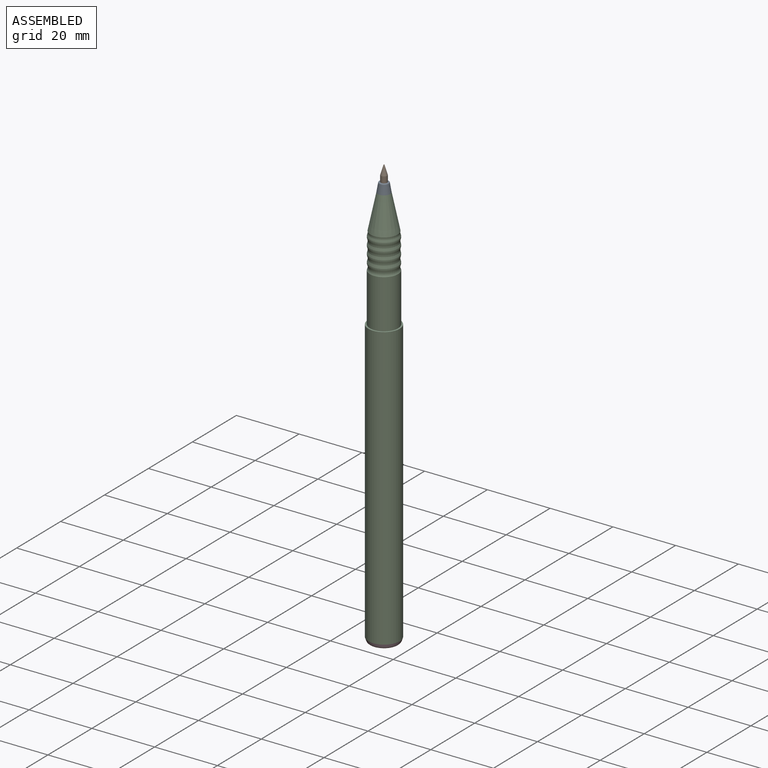
[diagram: assembled view]
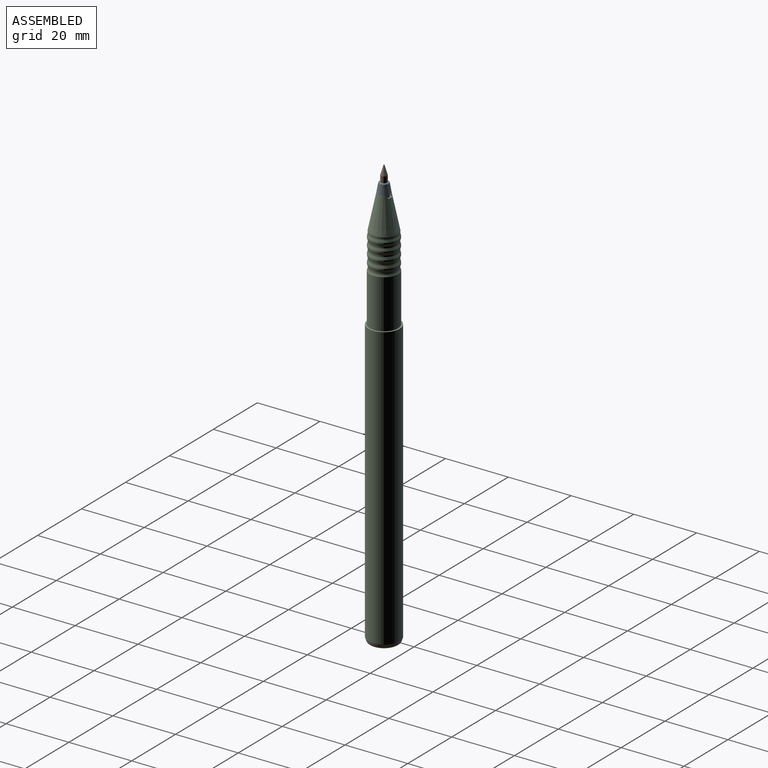
[diagram: assembled view, second angle]
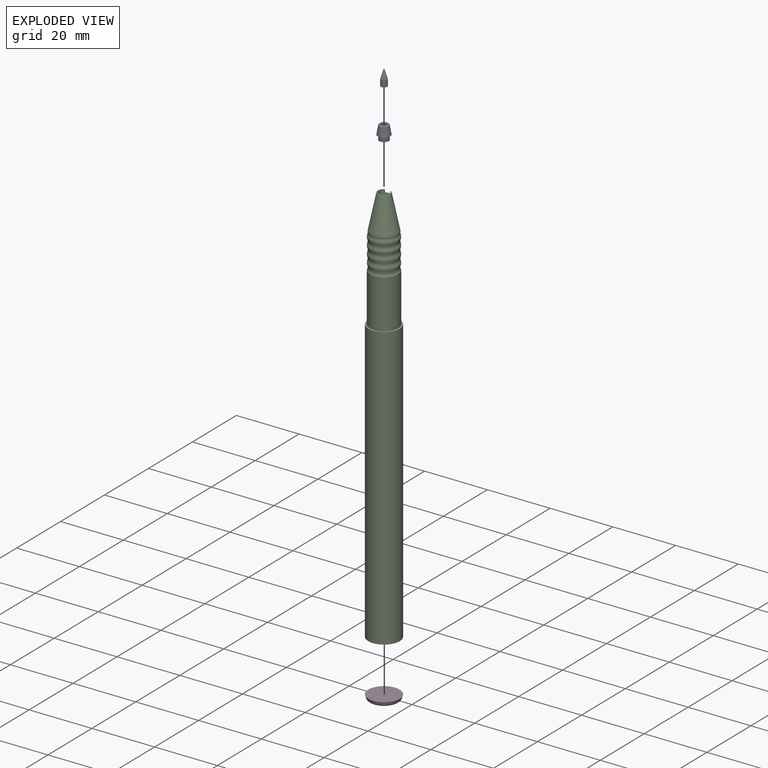
[diagram: exploded view]
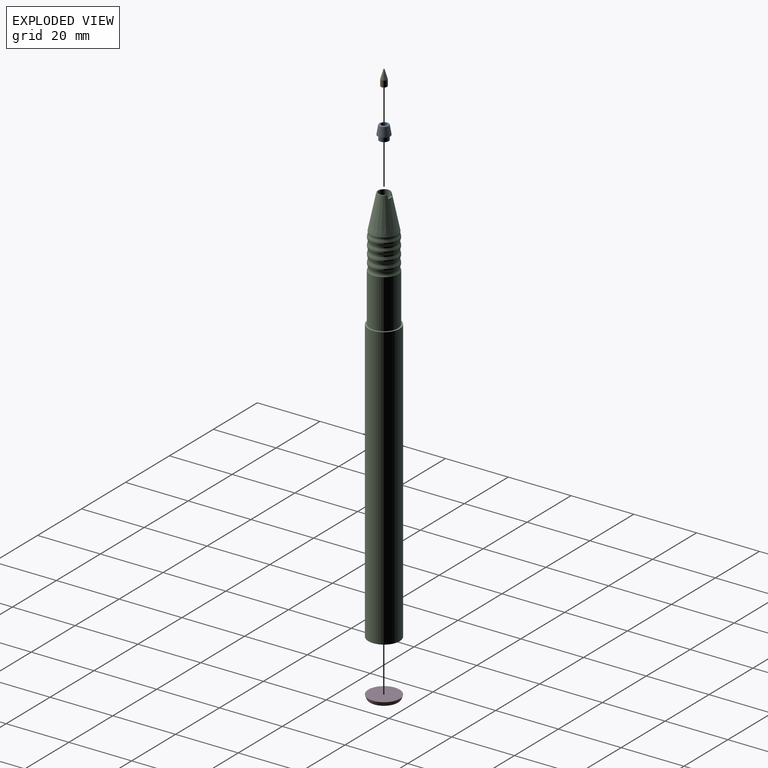
[diagram: exploded view, second angle]
ASSEMBLY  parts=4 mates=5
PART A: 7 faces, bbox 4x4x4.5 mm
  f0: plane 3x3mm, normal (0,0,-1), area 3.9mm2, adj f1,f5
  f1: cylinder r=1.5mm len=3mm, axis (0,0,1), area 14.1mm2, adj f0,f2
  f2: plane 4x4mm, normal (0,0,-1), area 5.5mm2, adj f1,f3
  f3: cone r=2mm half-angle=9.5deg, axis (0,0,-1), area 31.4mm2, adj f2,f6
  f4: plane 2.58x2.58mm, normal (0,0,1), area 2.1mm2, adj f5,f6
  f5: cylinder r=1mm len=4.5mm, axis (0,0,1), area 28.3mm2, adj f0,f4
  f6: torus R=1.29mm, axis (0,0,-1), area 3.2mm2, adj f3,f4
PART B: 6 faces, bbox 2.2x2.2x5 mm
  f0: plane 2x2mm, normal (0,0,-1), area 3.1mm2, adj f1
  f1: cylinder r=1mm len=2mm, axis (0,0,1), area 12.1mm2, adj f0,f5
  f2: cone r=0.1mm half-angle=16.7deg, axis (0,0,-1), area 10.3mm2, adj f4,f5
  f3: plane 0.05x0.05mm, normal (0,0,1), area 0mm2, adj f4
  f4: torus R=0.03mm, axis (0,0,1), area 0.1mm2, adj f2,f3
  f5: torus R=0.5mm, axis (0,0,-1), area 0.9mm2, adj f1,f2
PART C: 20 faces, bbox 10.3x10.3x128 mm
  f0: cylinder r=4.5mm len=15.6mm, axis (0,0,-1), area 441mm2, adj f2,f4
  f1: cylinder r=5mm len=90mm, axis (0,0,-1), area 2827.4mm2, adj f2,f3
  f2: plane 10x10mm, normal (0,0,1), area 14.9mm2, adj f0,f1
  f3: plane 10x10mm, normal (0,0,-1), area 78.5mm2, adj f1
  f4: torus R=6mm, axis (0,0,-1), area 44.4mm2, adj f0,f11
  f5: torus R=6mm, axis (0,0,-1), area 37.3mm2, adj f11,f12
  f6: torus R=6mm, axis (0,0,-1), area 37.3mm2, adj f12,f13
  f7: torus R=6mm, axis (0,0,-1), area 37.3mm2, adj f13,f14
  f8: torus R=6mm, axis (0,0,-1), area 30.5mm2, adj f10,f14
  f9: plane 4x3.73mm, normal (0,0,1), area 2.4mm2, adj f10,f15,f18,f19
  f10: cone r=4.5mm half-angle=11.8deg, axis (0,0,-1), area 221.7mm2, adj f8,f9,f17,f18,f19
  f11: torus R=3mm, axis (0,0,-1), area 33.2mm2, adj f4,f5
  f12: torus R=3mm, axis (0,0,-1), area 33.2mm2, adj f5,f6
  f13: torus R=3mm, axis (0,0,-1), area 33.2mm2, adj f6,f7
  f14: torus R=3mm, axis (0,0,-1), area 33.2mm2, adj f7,f8
  f15: cylinder r=1.75mm len=120mm, axis (0,0,1), area 1317.3mm2, adj f9,f16,f17,f18,f19
  f16: plane 3.5x3.5mm, normal (0,0,1), area 9.6mm2, adj f15
  f17: plane 2x0.77mm, normal (0,0,1), area 1mm2, adj f10,f15,f18,f19
  f18: plane 1.01x0.54mm, normal (-1,0,0), area 0.4mm2, adj f9,f10,f15,f17
  f19: plane 1.01x0.54mm, normal (1,0,0), area 0.4mm2, adj f9,f10,f15,f17
PART D: 4 faces, bbox 10.3x10.3x1.5 mm
  f0: plane 10x10mm, normal (0,0,-1), area 78.5mm2, adj f1
  f1: cone r=4.5mm half-angle=18.4deg, axis (0,0,-1), area 26.3mm2, adj f0,f3
  f2: plane 7.56x7.56mm, normal (0,0,1), area 44.9mm2, adj f3
  f3: torus R=3.78mm, axis (0,0,1), area 34mm2, adj f1,f2
PLACE A t=(-25.24,14.77,108.88)mm
PLACE B t=(-25.24,14.77,111.88)mm
PLACE C t=(-25.24,14.77,-19.12)mm
PLACE D rot(axis=(1,0,0),180deg) t=(-25.24,14.77,-19.12)mm
MATE fastened C.f4 <-> A.f1  axis (0,0,1) through (-25.24,14.77,108.88)mm
MATE fastened B.f1 <-> A.f1  axis (0,0,-1) through (-25.24,14.77,111.88)mm
MATE fastened D.f1 <-> C.f1  axis (0,0,1) through (-25.24,14.77,-19.12)mm
MATE cylindrical B.f1 <-> A.f5  axis (0,0,1) through (-25.24,14.77,112.84)mm
MATE cylindrical A.f1 <-> C.f15  axis (0,0,1) through (-25.24,14.77,108.13)mm
